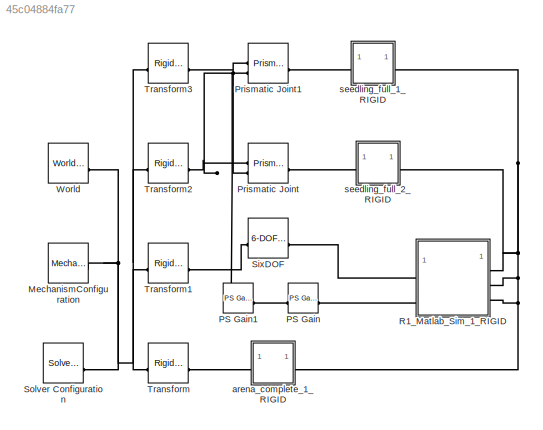
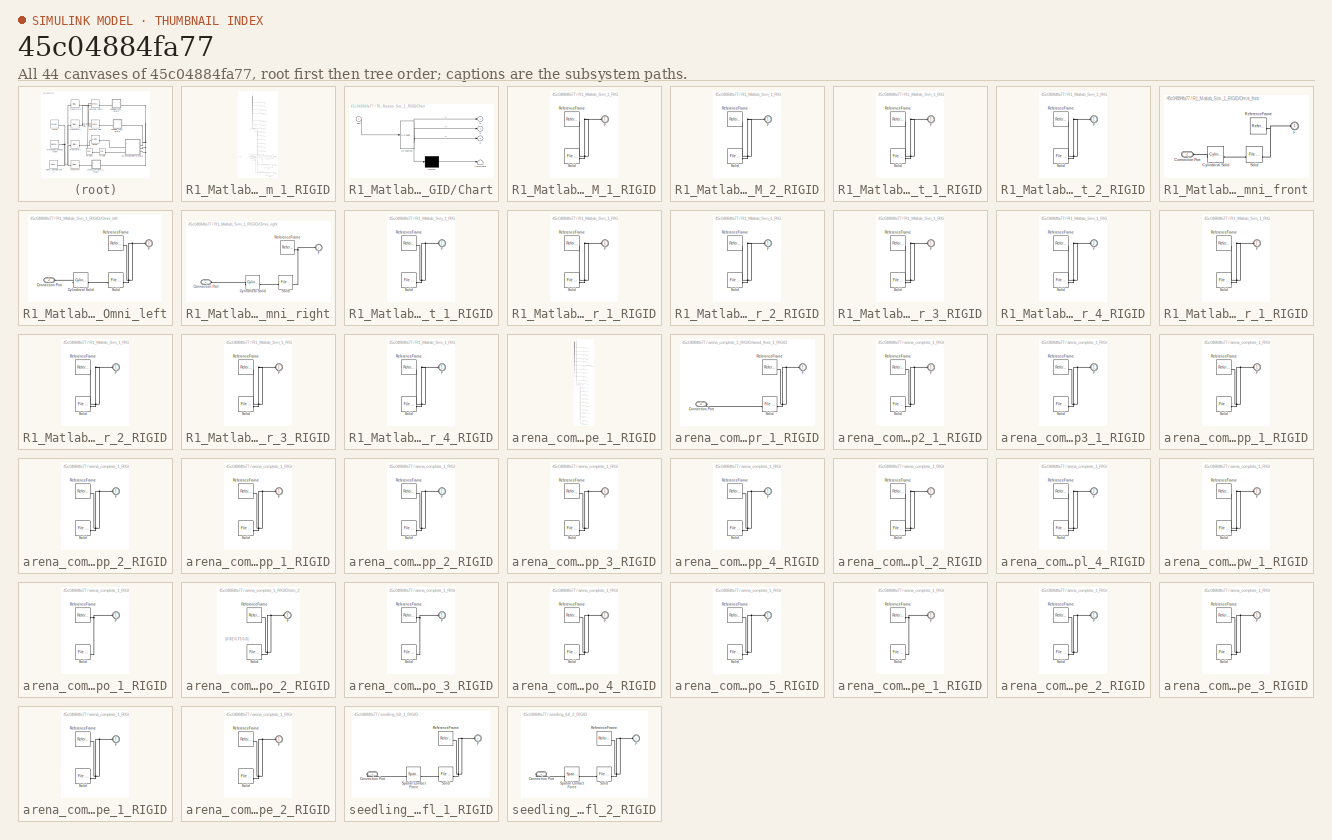
[diagram: thumbnail index - all 44 canvases of the model, root first then tree order]
MODEL slx_45c04884fa77
KIND model
CONFIG AbsTol = auto
CONFIG EnableMultiTasking = off
CONFIG FixedStep = auto
CONFIG MaxStep = auto
CONFIG MinStep = auto
CONFIG RelTol = 1e-3
CONFIG SampleTimeConstraint = Unconstrained
CONFIG SolverName = VariableStepAuto
CONFIG StartTime = 0.0
CONFIG StopTime = 20
WORKSPACE source: external: MATLAB File  (data not in archive)
BLOCK [Reference] MechanismConfiguration  REF=sm_lib/Utilities/Mechanism
Configuration
  SourceBlock = sm_lib/Utilities/Mechanism\nConfiguration
  SourceType = Mechanism\nConfiguration
BLOCK [Reference] PS Gain  REF=fl_lib/Physical Signals/Functions/PS Gain
  SourceBlock = fl_lib/Physical Signals/Functions/PS Gain
  SourceType = PS Gain
BLOCK [Reference] PS Gain1  REF=fl_lib/Physical Signals/Functions/PS Gain
  SourceBlock = fl_lib/Physical Signals/Functions/PS Gain
  SourceType = PS Gain
BLOCK [Reference] Prismatic Joint  REF=sm_lib/Joints/Prismatic
Joint
  SourceBlock = sm_lib/Joints/Prismatic\nJoint
  SourceType = Prismatic\nJoint
BLOCK [Reference] Prismatic Joint1  REF=sm_lib/Joints/Prismatic
Joint
  SourceBlock = sm_lib/Joints/Prismatic\nJoint
  SourceType = Prismatic\nJoint
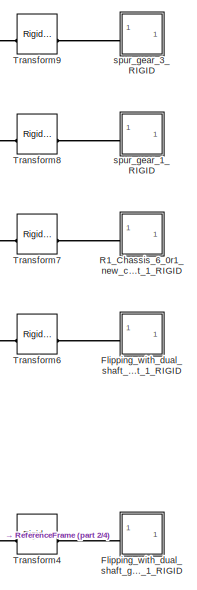
[diagram: R1_Matlab_Sim_1_RIGID - part 1/4, top center region]
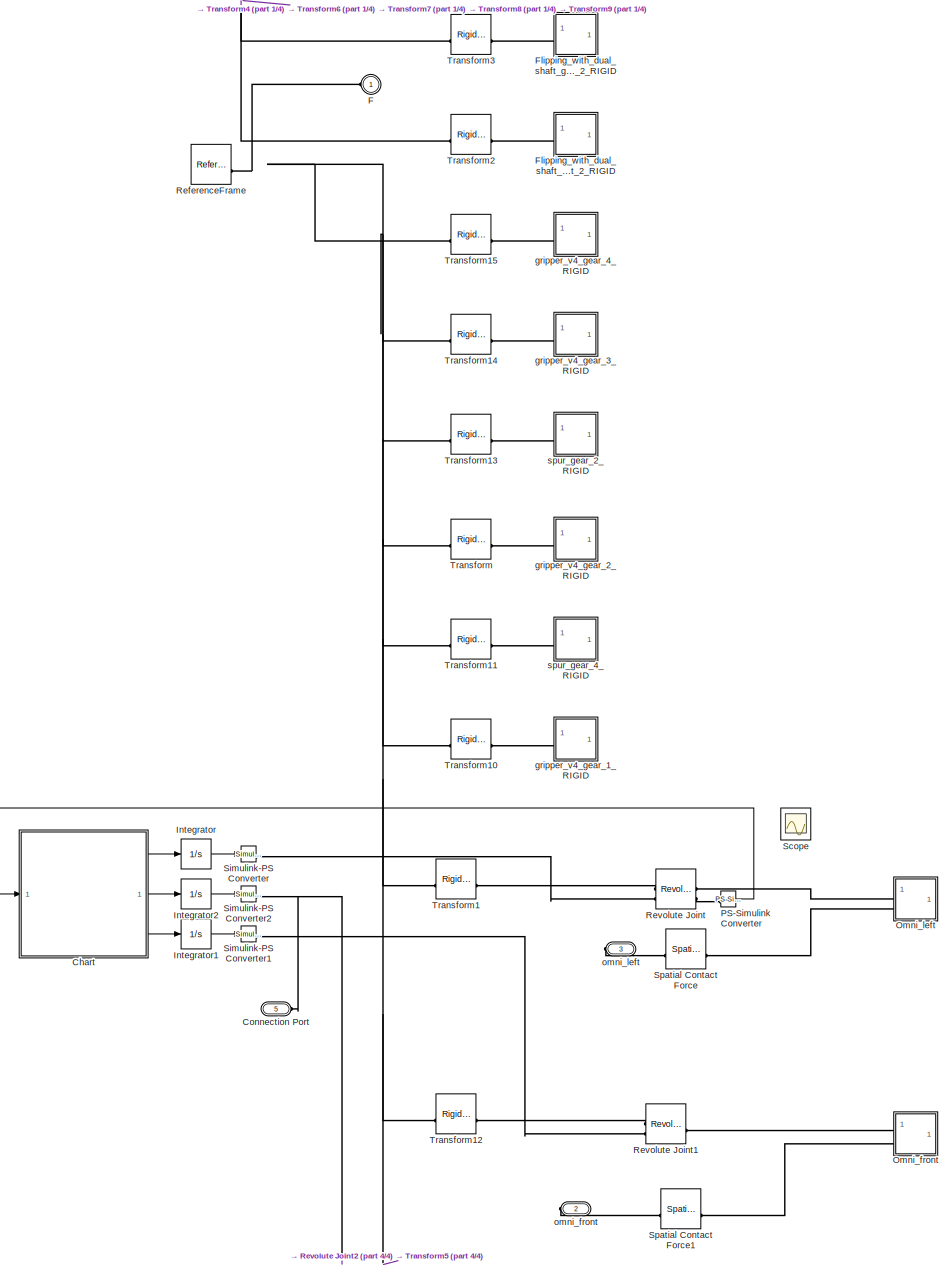
[diagram: R1_Matlab_Sim_1_RIGID - part 2/4, full width, middle band]
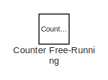
[diagram: R1_Matlab_Sim_1_RIGID - part 3/4, bottom left region]
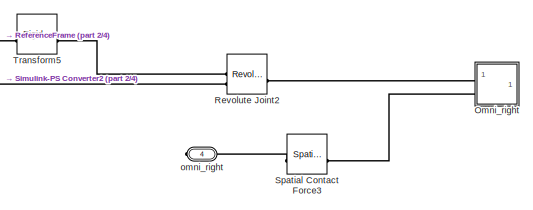
[diagram: R1_Matlab_Sim_1_RIGID - part 4/4, bottom right region]
BLOCK [SubSystem] R1_Matlab_Sim_1_RIGID
BLOCK [SubSystem] R1_Matlab_Sim_1_RIGID/Chart
  ErrorFcn = Stateflow.Translate.translate
  PermitHierarchicalResolution = ExplicitOnly
  PortSchema = {"entries":[{"content":{"sides":[{"content":{"connectorIds":["In1"]},"type":"ConnectorPlacement.EquallySpacedRectSide","uuid":"4c3b09f7-9276-4f85-a010-21e19151de8d"},{"content":{"connectorIds":["Out1","Out3","Out2"],"side":"RIGHT"},"type":"ConnectorPlacement.EquallySpacedRectSide","uuid":"f969736c-0c63-41bd-b34f-33692f9d3e00"},{"content":{"side":"TOP"},"type":"ConnectorPlacement.EquallySpacedRectS...<+236ch>
  SFBlockType = Chart
  TreatAsAtomicUnit = on
BLOCK [Demux] R1_Matlab_Sim_1_RIGID/Chart/ Demux 
  Outputs = 1
BLOCK [S-Function] R1_Matlab_Sim_1_RIGID/Chart/ SFunction 
  EnableBusSupport = on
  FunctionName = sf_sfun
  PortCounts = [1 4]
  SFcnIsStateOwnerBlock = off
  SFunctionDeploymentMode = off
  Tag = Stateflow S-Function 3
BLOCK [Terminator] R1_Matlab_Sim_1_RIGID/Chart/ Terminator 
BLOCK [Inport] R1_Matlab_Sim_1_RIGID/Chart/posl
BLOCK [Outport] R1_Matlab_Sim_1_RIGID/Chart/vf
  Port = 2
BLOCK [Outport] R1_Matlab_Sim_1_RIGID/Chart/vl
BLOCK [Outport] R1_Matlab_Sim_1_RIGID/Chart/vr
  Port = 3
BLOCK [PMIOPort] R1_Matlab_Sim_1_RIGID/Connection Port
  Port = 5
  Side = Left
BLOCK [Reference] R1_Matlab_Sim_1_RIGID/Counter Free-Running  REF=simulink/Sources/Counter
Free-Running
  SourceBlock = simulink/Sources/Counter\nFree-Running
  SourceType = Counter Free-Running
BLOCK [PMIOPort] R1_Matlab_Sim_1_RIGID/F
  Side = Left
BLOCK [SubSystem] R1_Matlab_Sim_1_RIGID/Flipping_with_dual_shaft_gripper_part_SLDASM_1_RIGID
BLOCK [PMIOPort] R1_Matlab_Sim_1_RIGID/Flipping_with_dual_shaft_gripper_part_SLDASM_1_RIGID/F
  Side = Left
BLOCK [Reference] R1_Matlab_Sim_1_RIGID/Flipping_with_dual_shaft_gripper_part_SLDASM_1_RIGID/ReferenceFrame  REF=sm_lib/Frames and
Transforms/Reference
Frame
  SourceBlock = sm_lib/Frames and\nTransforms/Reference\nFrame
  SourceType = Reference\nFrame
BLOCK [Reference] R1_Matlab_Sim_1_RIGID/Flipping_with_dual_shaft_gripper_part_SLDASM_1_RIGID/Solid  REF=sm_lib/Body Elements/File Solid
  SourceBlock = sm_lib/Body Elements/File Solid
  SourceType = File Solid
BLOCK [SubSystem] R1_Matlab_Sim_1_RIGID/Flipping_with_dual_shaft_gripper_part_SLDASM_2_RIGID
BLOCK [PMIOPort] R1_Matlab_Sim_1_RIGID/Flipping_with_dual_shaft_gripper_part_SLDASM_2_RIGID/F
  Side = Left
BLOCK [Reference] R1_Matlab_Sim_1_RIGID/Flipping_with_dual_shaft_gripper_part_SLDASM_2_RIGID/ReferenceFrame  REF=sm_lib/Frames and
Transforms/Reference
Frame
  SourceBlock = sm_lib/Frames and\nTransforms/Reference\nFrame
  SourceType = Reference\nFrame
BLOCK [Reference] R1_Matlab_Sim_1_RIGID/Flipping_with_dual_shaft_gripper_part_SLDASM_2_RIGID/Solid  REF=sm_lib/Body Elements/File Solid
  SourceBlock = sm_lib/Body Elements/File Solid
  SourceType = File Solid
BLOCK [SubSystem] R1_Matlab_Sim_1_RIGID/Flipping_with_dual_shaft_part_1_RIGID
BLOCK [PMIOPort] R1_Matlab_Sim_1_RIGID/Flipping_with_dual_shaft_part_1_RIGID/F
  Side = Left
BLOCK [Reference] R1_Matlab_Sim_1_RIGID/Flipping_with_dual_shaft_part_1_RIGID/ReferenceFrame  REF=sm_lib/Frames and
Transforms/Reference
Frame
  SourceBlock = sm_lib/Frames and\nTransforms/Reference\nFrame
  SourceType = Reference\nFrame
BLOCK [Reference] R1_Matlab_Sim_1_RIGID/Flipping_with_dual_shaft_part_1_RIGID/Solid  REF=sm_lib/Body Elements/File Solid
  SourceBlock = sm_lib/Body Elements/File Solid
  SourceType = File Solid
BLOCK [SubSystem] R1_Matlab_Sim_1_RIGID/Flipping_with_dual_shaft_part_2_RIGID
BLOCK [PMIOPort] R1_Matlab_Sim_1_RIGID/Flipping_with_dual_shaft_part_2_RIGID/F
  Side = Left
BLOCK [Reference] R1_Matlab_Sim_1_RIGID/Flipping_with_dual_shaft_part_2_RIGID/ReferenceFrame  REF=sm_lib/Frames and
Transforms/Reference
Frame
  SourceBlock = sm_lib/Frames and\nTransforms/Reference\nFrame
  SourceType = Reference\nFrame
BLOCK [Reference] R1_Matlab_Sim_1_RIGID/Flipping_with_dual_shaft_part_2_RIGID/Solid  REF=sm_lib/Body Elements/File Solid
  SourceBlock = sm_lib/Body Elements/File Solid
  SourceType = File Solid
BLOCK [Integrator] R1_Matlab_Sim_1_RIGID/Integrator
BLOCK [Integrator] R1_Matlab_Sim_1_RIGID/Integrator1
BLOCK [Integrator] R1_Matlab_Sim_1_RIGID/Integrator2
BLOCK [SubSystem] R1_Matlab_Sim_1_RIGID/Omni_front
BLOCK [PMIOPort] R1_Matlab_Sim_1_RIGID/Omni_front/Connection Port
  Port = 2
  Side = Left
BLOCK [Reference] R1_Matlab_Sim_1_RIGID/Omni_front/Cylindrical Solid  REF=sm_lib/Body Elements/Cylindrical Solid
  SourceBlock = sm_lib/Body Elements/Cylindrical Solid
  SourceType = Cylindrical Solid
BLOCK [PMIOPort] R1_Matlab_Sim_1_RIGID/Omni_front/F
  Side = Left
BLOCK [Reference] R1_Matlab_Sim_1_RIGID/Omni_front/ReferenceFrame  REF=sm_lib/Frames and
Transforms/Reference
Frame
  SourceBlock = sm_lib/Frames and\nTransforms/Reference\nFrame
  SourceType = Reference\nFrame
BLOCK [Reference] R1_Matlab_Sim_1_RIGID/Omni_front/Solid  REF=sm_lib/Body Elements/File Solid
  SourceBlock = sm_lib/Body Elements/File Solid
  SourceType = File Solid
BLOCK [SubSystem] R1_Matlab_Sim_1_RIGID/Omni_left
BLOCK [PMIOPort] R1_Matlab_Sim_1_RIGID/Omni_left/Connection Port
  Port = 2
  Side = Left
BLOCK [Reference] R1_Matlab_Sim_1_RIGID/Omni_left/Cylindrical Solid  REF=sm_lib/Body Elements/Cylindrical Solid
  SourceBlock = sm_lib/Body Elements/Cylindrical Solid
  SourceType = Cylindrical Solid
BLOCK [PMIOPort] R1_Matlab_Sim_1_RIGID/Omni_left/F
  Side = Left
BLOCK [Reference] R1_Matlab_Sim_1_RIGID/Omni_left/ReferenceFrame  REF=sm_lib/Frames and
Transforms/Reference
Frame
  SourceBlock = sm_lib/Frames and\nTransforms/Reference\nFrame
  SourceType = Reference\nFrame
BLOCK [Reference] R1_Matlab_Sim_1_RIGID/Omni_left/Solid  REF=sm_lib/Body Elements/File Solid
  SourceBlock = sm_lib/Body Elements/File Solid
  SourceType = File Solid
BLOCK [SubSystem] R1_Matlab_Sim_1_RIGID/Omni_right
BLOCK [PMIOPort] R1_Matlab_Sim_1_RIGID/Omni_right/Connection Port
  Port = 2
  Side = Left
BLOCK [Reference] R1_Matlab_Sim_1_RIGID/Omni_right/Cylindrical Solid  REF=sm_lib/Body Elements/Cylindrical Solid
  SourceBlock = sm_lib/Body Elements/Cylindrical Solid
  SourceType = Cylindrical Solid
BLOCK [PMIOPort] R1_Matlab_Sim_1_RIGID/Omni_right/F
  Side = Left
BLOCK [Reference] R1_Matlab_Sim_1_RIGID/Omni_right/ReferenceFrame  REF=sm_lib/Frames and
Transforms/Reference
Frame
  SourceBlock = sm_lib/Frames and\nTransforms/Reference\nFrame
  SourceType = Reference\nFrame
BLOCK [Reference] R1_Matlab_Sim_1_RIGID/Omni_right/Solid  REF=sm_lib/Body Elements/File Solid
  SourceBlock = sm_lib/Body Elements/File Solid
  SourceType = File Solid
BLOCK [Reference] R1_Matlab_Sim_1_RIGID/PS-Simulink Converter  REF=nesl_utility/PS-Simulink
Converter
  SourceBlock = nesl_utility/PS-Simulink\nConverter
  SourceType = PS-Simulink\nConverter
BLOCK [SubSystem] R1_Matlab_Sim_1_RIGID/R1_Chassis_6_0r1_new_chassis_final_part_1_RIGID
BLOCK [PMIOPort] R1_Matlab_Sim_1_RIGID/R1_Chassis_6_0r1_new_chassis_final_part_1_RIGID/F
  Side = Left
BLOCK [Reference] R1_Matlab_Sim_1_RIGID/R1_Chassis_6_0r1_new_chassis_final_part_1_RIGID/ReferenceFrame  REF=sm_lib/Frames and
Transforms/Reference
Frame
  SourceBlock = sm_lib/Frames and\nTransforms/Reference\nFrame
  SourceType = Reference\nFrame
BLOCK [Reference] R1_Matlab_Sim_1_RIGID/R1_Chassis_6_0r1_new_chassis_final_part_1_RIGID/Solid  REF=sm_lib/Body Elements/File Solid
  SourceBlock = sm_lib/Body Elements/File Solid
  SourceType = File Solid
BLOCK [Reference] R1_Matlab_Sim_1_RIGID/ReferenceFrame  REF=sm_lib/Frames and
Transforms/Reference
Frame
  SourceBlock = sm_lib/Frames and\nTransforms/Reference\nFrame
  SourceType = Reference\nFrame
BLOCK [Reference] R1_Matlab_Sim_1_RIGID/Revolute Joint  REF=sm_lib/Joints/Revolute Joint
  SourceBlock = sm_lib/Joints/Revolute Joint
  SourceType = Revolute Joint
BLOCK [Reference] R1_Matlab_Sim_1_RIGID/Revolute Joint1  REF=sm_lib/Joints/Revolute Joint
  SourceBlock = sm_lib/Joints/Revolute Joint
  SourceType = Revolute Joint
BLOCK [Reference] R1_Matlab_Sim_1_RIGID/Revolute Joint2  REF=sm_lib/Joints/Revolute Joint
  SourceBlock = sm_lib/Joints/Revolute Joint
  SourceType = Revolute Joint
BLOCK [Scope] R1_Matlab_Sim_1_RIGID/Scope
  Floating = off
  NumInputPorts = 1
  ScopeSpecificationString = Simulink.scopes.TimeScopeBlockCfg('CurrentConfiguration', extmgr.ConfigurationSet(extmgr.Configuration('Core','General UI',true),extmgr.Configuration('Core','Source UI',true),extmgr.Configuration('Sources','WiredSimulink',true),extmgr.Configuration('Visuals','Time Domain',true,'SerializedDisplays',{struct('MinYLimReal','-55.14485','MaxYLimReal','6.12721','YLabelReal','','MinYLimMag','0.00000','Max...<+1434ch>
BLOCK [Reference] R1_Matlab_Sim_1_RIGID/Simulink-PS Converter  REF=nesl_utility/Simulink-PS
Converter
  SourceBlock = nesl_utility/Simulink-PS\nConverter
  SourceType = Simulink-PS\nConverter
BLOCK [Reference] R1_Matlab_Sim_1_RIGID/Simulink-PS Converter1  REF=nesl_utility/Simulink-PS
Converter
  SourceBlock = nesl_utility/Simulink-PS\nConverter
  SourceType = Simulink-PS\nConverter
BLOCK [Reference] R1_Matlab_Sim_1_RIGID/Simulink-PS Converter2  REF=nesl_utility/Simulink-PS
Converter
  SourceBlock = nesl_utility/Simulink-PS\nConverter
  SourceType = Simulink-PS\nConverter
BLOCK [Reference] R1_Matlab_Sim_1_RIGID/Spatial Contact Force  REF=sm_lib/Forces and
Torques/Spatial
Contact Force
  SourceBlock = sm_lib/Forces and\nTorques/Spatial\nContact Force
  SourceType = Spatial\nContact Force
BLOCK [Reference] R1_Matlab_Sim_1_RIGID/Spatial Contact Force1  REF=sm_lib/Forces and
Torques/Spatial
Contact Force
  SourceBlock = sm_lib/Forces and\nTorques/Spatial\nContact Force
  SourceType = Spatial\nContact Force
BLOCK [Reference] R1_Matlab_Sim_1_RIGID/Spatial Contact Force3  REF=sm_lib/Forces and
Torques/Spatial
Contact Force
  SourceBlock = sm_lib/Forces and\nTorques/Spatial\nContact Force
  SourceType = Spatial\nContact Force
BLOCK [Reference] R1_Matlab_Sim_1_RIGID/Transform  REF=sm_lib/Frames and
Transforms/Rigid
Transform
  SourceBlock = sm_lib/Frames and\nTransforms/Rigid\nTransform
  SourceType = Rigid\nTransform
BLOCK [Reference] R1_Matlab_Sim_1_RIGID/Transform1  REF=sm_lib/Frames and
Transforms/Rigid
Transform
  SourceBlock = sm_lib/Frames and\nTransforms/Rigid\nTransform
  SourceType = Rigid\nTransform
BLOCK [Reference] R1_Matlab_Sim_1_RIGID/Transform10  REF=sm_lib/Frames and
Transforms/Rigid
Transform
  SourceBlock = sm_lib/Frames and\nTransforms/Rigid\nTransform
  SourceType = Rigid\nTransform
BLOCK [Reference] R1_Matlab_Sim_1_RIGID/Transform11  REF=sm_lib/Frames and
Transforms/Rigid
Transform
  SourceBlock = sm_lib/Frames and\nTransforms/Rigid\nTransform
  SourceType = Rigid\nTransform
BLOCK [Reference] R1_Matlab_Sim_1_RIGID/Transform12  REF=sm_lib/Frames and
Transforms/Rigid
Transform
  SourceBlock = sm_lib/Frames and\nTransforms/Rigid\nTransform
  SourceType = Rigid\nTransform
BLOCK [Reference] R1_Matlab_Sim_1_RIGID/Transform13  REF=sm_lib/Frames and
Transforms/Rigid
Transform
  SourceBlock = sm_lib/Frames and\nTransforms/Rigid\nTransform
  SourceType = Rigid\nTransform
BLOCK [Reference] R1_Matlab_Sim_1_RIGID/Transform14  REF=sm_lib/Frames and
Transforms/Rigid
Transform
  SourceBlock = sm_lib/Frames and\nTransforms/Rigid\nTransform
  SourceType = Rigid\nTransform
BLOCK [Reference] R1_Matlab_Sim_1_RIGID/Transform15  REF=sm_lib/Frames and
Transforms/Rigid
Transform
  SourceBlock = sm_lib/Frames and\nTransforms/Rigid\nTransform
  SourceType = Rigid\nTransform
BLOCK [Reference] R1_Matlab_Sim_1_RIGID/Transform2  REF=sm_lib/Frames and
Transforms/Rigid
Transform
  SourceBlock = sm_lib/Frames and\nTransforms/Rigid\nTransform
  SourceType = Rigid\nTransform
BLOCK [Reference] R1_Matlab_Sim_1_RIGID/Transform3  REF=sm_lib/Frames and
Transforms/Rigid
Transform
  SourceBlock = sm_lib/Frames and\nTransforms/Rigid\nTransform
  SourceType = Rigid\nTransform
BLOCK [Reference] R1_Matlab_Sim_1_RIGID/Transform4  REF=sm_lib/Frames and
Transforms/Rigid
Transform
  SourceBlock = sm_lib/Frames and\nTransforms/Rigid\nTransform
  SourceType = Rigid\nTransform
BLOCK [Reference] R1_Matlab_Sim_1_RIGID/Transform5  REF=sm_lib/Frames and
Transforms/Rigid
Transform
  SourceBlock = sm_lib/Frames and\nTransforms/Rigid\nTransform
  SourceType = Rigid\nTransform
BLOCK [Reference] R1_Matlab_Sim_1_RIGID/Transform6  REF=sm_lib/Frames and
Transforms/Rigid
Transform
  SourceBlock = sm_lib/Frames and\nTransforms/Rigid\nTransform
  SourceType = Rigid\nTransform
BLOCK [Reference] R1_Matlab_Sim_1_RIGID/Transform7  REF=sm_lib/Frames and
Transforms/Rigid
Transform
  SourceBlock = sm_lib/Frames and\nTransforms/Rigid\nTransform
  SourceType = Rigid\nTransform
BLOCK [Reference] R1_Matlab_Sim_1_RIGID/Transform8  REF=sm_lib/Frames and
Transforms/Rigid
Transform
  SourceBlock = sm_lib/Frames and\nTransforms/Rigid\nTransform
  SourceType = Rigid\nTransform
BLOCK [Reference] R1_Matlab_Sim_1_RIGID/Transform9  REF=sm_lib/Frames and
Transforms/Rigid
Transform
  SourceBlock = sm_lib/Frames and\nTransforms/Rigid\nTransform
  SourceType = Rigid\nTransform
BLOCK [SubSystem] R1_Matlab_Sim_1_RIGID/gripper_v4_gear_1_RIGID
BLOCK [PMIOPort] R1_Matlab_Sim_1_RIGID/gripper_v4_gear_1_RIGID/F
  Side = Left
BLOCK [Reference] R1_Matlab_Sim_1_RIGID/gripper_v4_gear_1_RIGID/ReferenceFrame  REF=sm_lib/Frames and
Transforms/Reference
Frame
  SourceBlock = sm_lib/Frames and\nTransforms/Reference\nFrame
  SourceType = Reference\nFrame
BLOCK [Reference] R1_Matlab_Sim_1_RIGID/gripper_v4_gear_1_RIGID/Solid  REF=sm_lib/Body Elements/File Solid
  SourceBlock = sm_lib/Body Elements/File Solid
  SourceType = File Solid
BLOCK [SubSystem] R1_Matlab_Sim_1_RIGID/gripper_v4_gear_2_RIGID
BLOCK [PMIOPort] R1_Matlab_Sim_1_RIGID/gripper_v4_gear_2_RIGID/F
  Side = Left
BLOCK [Reference] R1_Matlab_Sim_1_RIGID/gripper_v4_gear_2_RIGID/ReferenceFrame  REF=sm_lib/Frames and
Transforms/Reference
Frame
  SourceBlock = sm_lib/Frames and\nTransforms/Reference\nFrame
  SourceType = Reference\nFrame
BLOCK [Reference] R1_Matlab_Sim_1_RIGID/gripper_v4_gear_2_RIGID/Solid  REF=sm_lib/Body Elements/File Solid
  SourceBlock = sm_lib/Body Elements/File Solid
  SourceType = File Solid
BLOCK [SubSystem] R1_Matlab_Sim_1_RIGID/gripper_v4_gear_3_RIGID
BLOCK [PMIOPort] R1_Matlab_Sim_1_RIGID/gripper_v4_gear_3_RIGID/F
  Side = Left
BLOCK [Reference] R1_Matlab_Sim_1_RIGID/gripper_v4_gear_3_RIGID/ReferenceFrame  REF=sm_lib/Frames and
Transforms/Reference
Frame
  SourceBlock = sm_lib/Frames and\nTransforms/Reference\nFrame
  SourceType = Reference\nFrame
BLOCK [Reference] R1_Matlab_Sim_1_RIGID/gripper_v4_gear_3_RIGID/Solid  REF=sm_lib/Body Elements/File Solid
  SourceBlock = sm_lib/Body Elements/File Solid
  SourceType = File Solid
BLOCK [SubSystem] R1_Matlab_Sim_1_RIGID/gripper_v4_gear_4_RIGID
BLOCK [PMIOPort] R1_Matlab_Sim_1_RIGID/gripper_v4_gear_4_RIGID/F
  Side = Left
BLOCK [Reference] R1_Matlab_Sim_1_RIGID/gripper_v4_gear_4_RIGID/ReferenceFrame  REF=sm_lib/Frames and
Transforms/Reference
Frame
  SourceBlock = sm_lib/Frames and\nTransforms/Reference\nFrame
  SourceType = Reference\nFrame
BLOCK [Reference] R1_Matlab_Sim_1_RIGID/gripper_v4_gear_4_RIGID/Solid  REF=sm_lib/Body Elements/File Solid
  SourceBlock = sm_lib/Body Elements/File Solid
  SourceType = File Solid
BLOCK [PMIOPort] R1_Matlab_Sim_1_RIGID/omni_front
  Port = 2
  Side = Right
BLOCK [PMIOPort] R1_Matlab_Sim_1_RIGID/omni_left
  Port = 3
  Side = Right
BLOCK [PMIOPort] R1_Matlab_Sim_1_RIGID/omni_right
  Port = 4
  Side = Right
BLOCK [SubSystem] R1_Matlab_Sim_1_RIGID/spur_gear_1_RIGID
BLOCK [PMIOPort] R1_Matlab_Sim_1_RIGID/spur_gear_1_RIGID/F
  Side = Left
BLOCK [Reference] R1_Matlab_Sim_1_RIGID/spur_gear_1_RIGID/ReferenceFrame  REF=sm_lib/Frames and
Transforms/Reference
Frame
  SourceBlock = sm_lib/Frames and\nTransforms/Reference\nFrame
  SourceType = Reference\nFrame
BLOCK [Reference] R1_Matlab_Sim_1_RIGID/spur_gear_1_RIGID/Solid  REF=sm_lib/Body Elements/File Solid
  SourceBlock = sm_lib/Body Elements/File Solid
  SourceType = File Solid
BLOCK [SubSystem] R1_Matlab_Sim_1_RIGID/spur_gear_2_RIGID
BLOCK [PMIOPort] R1_Matlab_Sim_1_RIGID/spur_gear_2_RIGID/F
  Side = Left
BLOCK [Reference] R1_Matlab_Sim_1_RIGID/spur_gear_2_RIGID/ReferenceFrame  REF=sm_lib/Frames and
Transforms/Reference
Frame
  SourceBlock = sm_lib/Frames and\nTransforms/Reference\nFrame
  SourceType = Reference\nFrame
BLOCK [Reference] R1_Matlab_Sim_1_RIGID/spur_gear_2_RIGID/Solid  REF=sm_lib/Body Elements/File Solid
  SourceBlock = sm_lib/Body Elements/File Solid
  SourceType = File Solid
BLOCK [SubSystem] R1_Matlab_Sim_1_RIGID/spur_gear_3_RIGID
BLOCK [PMIOPort] R1_Matlab_Sim_1_RIGID/spur_gear_3_RIGID/F
  Side = Left
BLOCK [Reference] R1_Matlab_Sim_1_RIGID/spur_gear_3_RIGID/ReferenceFrame  REF=sm_lib/Frames and
Transforms/Reference
Frame
  SourceBlock = sm_lib/Frames and\nTransforms/Reference\nFrame
  SourceType = Reference\nFrame
BLOCK [Reference] R1_Matlab_Sim_1_RIGID/spur_gear_3_RIGID/Solid  REF=sm_lib/Body Elements/File Solid
  SourceBlock = sm_lib/Body Elements/File Solid
  SourceType = File Solid
BLOCK [SubSystem] R1_Matlab_Sim_1_RIGID/spur_gear_4_RIGID
BLOCK [PMIOPort] R1_Matlab_Sim_1_RIGID/spur_gear_4_RIGID/F
  Side = Left
BLOCK [Reference] R1_Matlab_Sim_1_RIGID/spur_gear_4_RIGID/ReferenceFrame  REF=sm_lib/Frames and
Transforms/Reference
Frame
  SourceBlock = sm_lib/Frames and\nTransforms/Reference\nFrame
  SourceType = Reference\nFrame
BLOCK [Reference] R1_Matlab_Sim_1_RIGID/spur_gear_4_RIGID/Solid  REF=sm_lib/Body Elements/File Solid
  SourceBlock = sm_lib/Body Elements/File Solid
  SourceType = File Solid
BLOCK [Reference] SixDOF  REF=sm_lib/Joints/6-DOF Joint
  SourceBlock = sm_lib/Joints/6-DOF Joint
  SourceType = 6-DOF Joint
BLOCK [Reference] Solver Configuration  REF=nesl_utility/Solver
Configuration
  SourceBlock = nesl_utility/Solver\nConfiguration
  SourceType = Solver\nConfiguration
BLOCK [Reference] Transform  REF=sm_lib/Frames and
Transforms/Rigid
Transform
  SourceBlock = sm_lib/Frames and\nTransforms/Rigid\nTransform
  SourceType = Rigid\nTransform
BLOCK [Reference] Transform1  REF=sm_lib/Frames and
Transforms/Rigid
Transform
  SourceBlock = sm_lib/Frames and\nTransforms/Rigid\nTransform
  SourceType = Rigid\nTransform
BLOCK [Reference] Transform2  REF=sm_lib/Frames and
Transforms/Rigid
Transform
  SourceBlock = sm_lib/Frames and\nTransforms/Rigid\nTransform
  SourceType = Rigid\nTransform
BLOCK [Reference] Transform3  REF=sm_lib/Frames and
Transforms/Rigid
Transform
  SourceBlock = sm_lib/Frames and\nTransforms/Rigid\nTransform
  SourceType = Rigid\nTransform
BLOCK [Reference] World  REF=sm_lib/Frames and
Transforms/World Frame
  SourceBlock = sm_lib/Frames and\nTransforms/World Frame
  SourceType = World Frame
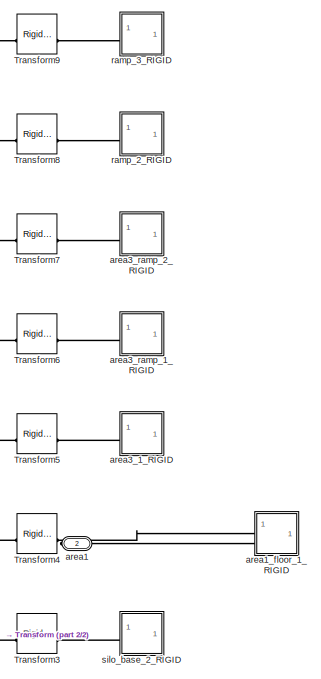
[diagram: arena_complete_1_RIGID - part 1/2, top right region]
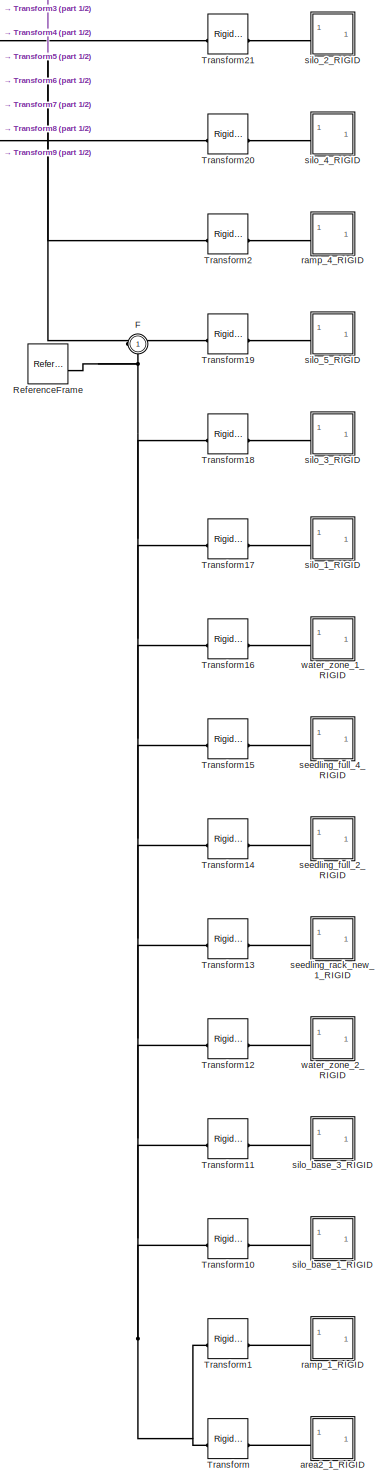
[diagram: arena_complete_1_RIGID - part 2/2, bottom center region]
BLOCK [SubSystem] arena_complete_1_RIGID
BLOCK [PMIOPort] arena_complete_1_RIGID/F
  Side = Left
BLOCK [Reference] arena_complete_1_RIGID/ReferenceFrame  REF=sm_lib/Frames and
Transforms/Reference
Frame
  SourceBlock = sm_lib/Frames and\nTransforms/Reference\nFrame
  SourceType = Reference\nFrame
BLOCK [Reference] arena_complete_1_RIGID/Transform  REF=sm_lib/Frames and
Transforms/Rigid
Transform
  SourceBlock = sm_lib/Frames and\nTransforms/Rigid\nTransform
  SourceType = Rigid\nTransform
BLOCK [Reference] arena_complete_1_RIGID/Transform1  REF=sm_lib/Frames and
Transforms/Rigid
Transform
  SourceBlock = sm_lib/Frames and\nTransforms/Rigid\nTransform
  SourceType = Rigid\nTransform
BLOCK [Reference] arena_complete_1_RIGID/Transform10  REF=sm_lib/Frames and
Transforms/Rigid
Transform
  SourceBlock = sm_lib/Frames and\nTransforms/Rigid\nTransform
  SourceType = Rigid\nTransform
BLOCK [Reference] arena_complete_1_RIGID/Transform11  REF=sm_lib/Frames and
Transforms/Rigid
Transform
  SourceBlock = sm_lib/Frames and\nTransforms/Rigid\nTransform
  SourceType = Rigid\nTransform
BLOCK [Reference] arena_complete_1_RIGID/Transform12  REF=sm_lib/Frames and
Transforms/Rigid
Transform
  SourceBlock = sm_lib/Frames and\nTransforms/Rigid\nTransform
  SourceType = Rigid\nTransform
BLOCK [Reference] arena_complete_1_RIGID/Transform13  REF=sm_lib/Frames and
Transforms/Rigid
Transform
  SourceBlock = sm_lib/Frames and\nTransforms/Rigid\nTransform
  SourceType = Rigid\nTransform
BLOCK [Reference] arena_complete_1_RIGID/Transform14  REF=sm_lib/Frames and
Transforms/Rigid
Transform
  SourceBlock = sm_lib/Frames and\nTransforms/Rigid\nTransform
  SourceType = Rigid\nTransform
BLOCK [Reference] arena_complete_1_RIGID/Transform15  REF=sm_lib/Frames and
Transforms/Rigid
Transform
  SourceBlock = sm_lib/Frames and\nTransforms/Rigid\nTransform
  SourceType = Rigid\nTransform
BLOCK [Reference] arena_complete_1_RIGID/Transform16  REF=sm_lib/Frames and
Transforms/Rigid
Transform
  SourceBlock = sm_lib/Frames and\nTransforms/Rigid\nTransform
  SourceType = Rigid\nTransform
BLOCK [Reference] arena_complete_1_RIGID/Transform17  REF=sm_lib/Frames and
Transforms/Rigid
Transform
  SourceBlock = sm_lib/Frames and\nTransforms/Rigid\nTransform
  SourceType = Rigid\nTransform
BLOCK [Reference] arena_complete_1_RIGID/Transform18  REF=sm_lib/Frames and
Transforms/Rigid
Transform
  SourceBlock = sm_lib/Frames and\nTransforms/Rigid\nTransform
  SourceType = Rigid\nTransform
BLOCK [Reference] arena_complete_1_RIGID/Transform19  REF=sm_lib/Frames and
Transforms/Rigid
Transform
  SourceBlock = sm_lib/Frames and\nTransforms/Rigid\nTransform
  SourceType = Rigid\nTransform
BLOCK [Reference] arena_complete_1_RIGID/Transform2  REF=sm_lib/Frames and
Transforms/Rigid
Transform
  SourceBlock = sm_lib/Frames and\nTransforms/Rigid\nTransform
  SourceType = Rigid\nTransform
BLOCK [Reference] arena_complete_1_RIGID/Transform20  REF=sm_lib/Frames and
Transforms/Rigid
Transform
  SourceBlock = sm_lib/Frames and\nTransforms/Rigid\nTransform
  SourceType = Rigid\nTransform
BLOCK [Reference] arena_complete_1_RIGID/Transform21  REF=sm_lib/Frames and
Transforms/Rigid
Transform
  SourceBlock = sm_lib/Frames and\nTransforms/Rigid\nTransform
  SourceType = Rigid\nTransform
BLOCK [Reference] arena_complete_1_RIGID/Transform3  REF=sm_lib/Frames and
Transforms/Rigid
Transform
  SourceBlock = sm_lib/Frames and\nTransforms/Rigid\nTransform
  SourceType = Rigid\nTransform
BLOCK [Reference] arena_complete_1_RIGID/Transform4  REF=sm_lib/Frames and
Transforms/Rigid
Transform
  SourceBlock = sm_lib/Frames and\nTransforms/Rigid\nTransform
  SourceType = Rigid\nTransform
BLOCK [Reference] arena_complete_1_RIGID/Transform5  REF=sm_lib/Frames and
Transforms/Rigid
Transform
  SourceBlock = sm_lib/Frames and\nTransforms/Rigid\nTransform
  SourceType = Rigid\nTransform
BLOCK [Reference] arena_complete_1_RIGID/Transform6  REF=sm_lib/Frames and
Transforms/Rigid
Transform
  SourceBlock = sm_lib/Frames and\nTransforms/Rigid\nTransform
  SourceType = Rigid\nTransform
BLOCK [Reference] arena_complete_1_RIGID/Transform7  REF=sm_lib/Frames and
Transforms/Rigid
Transform
  SourceBlock = sm_lib/Frames and\nTransforms/Rigid\nTransform
  SourceType = Rigid\nTransform
BLOCK [Reference] arena_complete_1_RIGID/Transform8  REF=sm_lib/Frames and
Transforms/Rigid
Transform
  SourceBlock = sm_lib/Frames and\nTransforms/Rigid\nTransform
  SourceType = Rigid\nTransform
BLOCK [Reference] arena_complete_1_RIGID/Transform9  REF=sm_lib/Frames and
Transforms/Rigid
Transform
  SourceBlock = sm_lib/Frames and\nTransforms/Rigid\nTransform
  SourceType = Rigid\nTransform
BLOCK [PMIOPort] arena_complete_1_RIGID/area1
  Port = 2
  Side = Right
BLOCK [SubSystem] arena_complete_1_RIGID/area1_floor_1_RIGID
BLOCK [PMIOPort] arena_complete_1_RIGID/area1_floor_1_RIGID/Connection Port
  Port = 2
  Side = Left
BLOCK [PMIOPort] arena_complete_1_RIGID/area1_floor_1_RIGID/F
  Side = Left
BLOCK [Reference] arena_complete_1_RIGID/area1_floor_1_RIGID/ReferenceFrame  REF=sm_lib/Frames and
Transforms/Reference
Frame
  SourceBlock = sm_lib/Frames and\nTransforms/Reference\nFrame
  SourceType = Reference\nFrame
BLOCK [Reference] arena_complete_1_RIGID/area1_floor_1_RIGID/Solid  REF=sm_lib/Body Elements/File Solid
  SourceBlock = sm_lib/Body Elements/File Solid
  SourceType = File Solid
BLOCK [SubSystem] arena_complete_1_RIGID/area2_1_RIGID
BLOCK [PMIOPort] arena_complete_1_RIGID/area2_1_RIGID/F
  Side = Left
BLOCK [Reference] arena_complete_1_RIGID/area2_1_RIGID/ReferenceFrame  REF=sm_lib/Frames and
Transforms/Reference
Frame
  SourceBlock = sm_lib/Frames and\nTransforms/Reference\nFrame
  SourceType = Reference\nFrame
BLOCK [Reference] arena_complete_1_RIGID/area2_1_RIGID/Solid  REF=sm_lib/Body Elements/File Solid
  SourceBlock = sm_lib/Body Elements/File Solid
  SourceType = File Solid
BLOCK [SubSystem] arena_complete_1_RIGID/area3_1_RIGID
BLOCK [PMIOPort] arena_complete_1_RIGID/area3_1_RIGID/F
  Side = Left
BLOCK [Reference] arena_complete_1_RIGID/area3_1_RIGID/ReferenceFrame  REF=sm_lib/Frames and
Transforms/Reference
Frame
  SourceBlock = sm_lib/Frames and\nTransforms/Reference\nFrame
  SourceType = Reference\nFrame
BLOCK [Reference] arena_complete_1_RIGID/area3_1_RIGID/Solid  REF=sm_lib/Body Elements/File Solid
  SourceBlock = sm_lib/Body Elements/File Solid
  SourceType = File Solid
BLOCK [SubSystem] arena_complete_1_RIGID/area3_ramp_1_RIGID
BLOCK [PMIOPort] arena_complete_1_RIGID/area3_ramp_1_RIGID/F
  Side = Left
BLOCK [Reference] arena_complete_1_RIGID/area3_ramp_1_RIGID/ReferenceFrame  REF=sm_lib/Frames and
Transforms/Reference
Frame
  SourceBlock = sm_lib/Frames and\nTransforms/Reference\nFrame
  SourceType = Reference\nFrame
BLOCK [Reference] arena_complete_1_RIGID/area3_ramp_1_RIGID/Solid  REF=sm_lib/Body Elements/File Solid
  SourceBlock = sm_lib/Body Elements/File Solid
  SourceType = File Solid
BLOCK [SubSystem] arena_complete_1_RIGID/area3_ramp_2_RIGID
BLOCK [PMIOPort] arena_complete_1_RIGID/area3_ramp_2_RIGID/F
  Side = Left
BLOCK [Reference] arena_complete_1_RIGID/area3_ramp_2_RIGID/ReferenceFrame  REF=sm_lib/Frames and
Transforms/Reference
Frame
  SourceBlock = sm_lib/Frames and\nTransforms/Reference\nFrame
  SourceType = Reference\nFrame
BLOCK [Reference] arena_complete_1_RIGID/area3_ramp_2_RIGID/Solid  REF=sm_lib/Body Elements/File Solid
  SourceBlock = sm_lib/Body Elements/File Solid
  SourceType = File Solid
BLOCK [SubSystem] arena_complete_1_RIGID/ramp_1_RIGID
BLOCK [PMIOPort] arena_complete_1_RIGID/ramp_1_RIGID/F
  Side = Left
BLOCK [Reference] arena_complete_1_RIGID/ramp_1_RIGID/ReferenceFrame  REF=sm_lib/Frames and
Transforms/Reference
Frame
  SourceBlock = sm_lib/Frames and\nTransforms/Reference\nFrame
  SourceType = Reference\nFrame
BLOCK [Reference] arena_complete_1_RIGID/ramp_1_RIGID/Solid  REF=sm_lib/Body Elements/File Solid
  SourceBlock = sm_lib/Body Elements/File Solid
  SourceType = File Solid
BLOCK [SubSystem] arena_complete_1_RIGID/ramp_2_RIGID
BLOCK [PMIOPort] arena_complete_1_RIGID/ramp_2_RIGID/F
  Side = Left
BLOCK [Reference] arena_complete_1_RIGID/ramp_2_RIGID/ReferenceFrame  REF=sm_lib/Frames and
Transforms/Reference
Frame
  SourceBlock = sm_lib/Frames and\nTransforms/Reference\nFrame
  SourceType = Reference\nFrame
BLOCK [Reference] arena_complete_1_RIGID/ramp_2_RIGID/Solid  REF=sm_lib/Body Elements/File Solid
  SourceBlock = sm_lib/Body Elements/File Solid
  SourceType = File Solid
BLOCK [SubSystem] arena_complete_1_RIGID/ramp_3_RIGID
BLOCK [PMIOPort] arena_complete_1_RIGID/ramp_3_RIGID/F
  Side = Left
BLOCK [Reference] arena_complete_1_RIGID/ramp_3_RIGID/ReferenceFrame  REF=sm_lib/Frames and
Transforms/Reference
Frame
  SourceBlock = sm_lib/Frames and\nTransforms/Reference\nFrame
  SourceType = Reference\nFrame
BLOCK [Reference] arena_complete_1_RIGID/ramp_3_RIGID/Solid  REF=sm_lib/Body Elements/File Solid
  SourceBlock = sm_lib/Body Elements/File Solid
  SourceType = File Solid
BLOCK [SubSystem] arena_complete_1_RIGID/ramp_4_RIGID
BLOCK [PMIOPort] arena_complete_1_RIGID/ramp_4_RIGID/F
  Side = Left
BLOCK [Reference] arena_complete_1_RIGID/ramp_4_RIGID/ReferenceFrame  REF=sm_lib/Frames and
Transforms/Reference
Frame
  SourceBlock = sm_lib/Frames and\nTransforms/Reference\nFrame
  SourceType = Reference\nFrame
BLOCK [Reference] arena_complete_1_RIGID/ramp_4_RIGID/Solid  REF=sm_lib/Body Elements/File Solid
  SourceBlock = sm_lib/Body Elements/File Solid
  SourceType = File Solid
BLOCK [SubSystem] arena_complete_1_RIGID/seedling_full_2_RIGID
BLOCK [PMIOPort] arena_complete_1_RIGID/seedling_full_2_RIGID/F
  Side = Left
BLOCK [Reference] arena_complete_1_RIGID/seedling_full_2_RIGID/ReferenceFrame  REF=sm_lib/Frames and
Transforms/Reference
Frame
  SourceBlock = sm_lib/Frames and\nTransforms/Reference\nFrame
  SourceType = Reference\nFrame
BLOCK [Reference] arena_complete_1_RIGID/seedling_full_2_RIGID/Solid  REF=sm_lib/Body Elements/File Solid
  SourceBlock = sm_lib/Body Elements/File Solid
  SourceType = File Solid
BLOCK [SubSystem] arena_complete_1_RIGID/seedling_full_4_RIGID
BLOCK [PMIOPort] arena_complete_1_RIGID/seedling_full_4_RIGID/F
  Side = Left
BLOCK [Reference] arena_complete_1_RIGID/seedling_full_4_RIGID/ReferenceFrame  REF=sm_lib/Frames and
Transforms/Reference
Frame
  SourceBlock = sm_lib/Frames and\nTransforms/Reference\nFrame
  SourceType = Reference\nFrame
BLOCK [Reference] arena_complete_1_RIGID/seedling_full_4_RIGID/Solid  REF=sm_lib/Body Elements/File Solid
  SourceBlock = sm_lib/Body Elements/File Solid
  SourceType = File Solid
BLOCK [SubSystem] arena_complete_1_RIGID/seedling_rack_new_1_RIGID
BLOCK [PMIOPort] arena_complete_1_RIGID/seedling_rack_new_1_RIGID/F
  Side = Left
BLOCK [Reference] arena_complete_1_RIGID/seedling_rack_new_1_RIGID/ReferenceFrame  REF=sm_lib/Frames and
Transforms/Reference
Frame
  SourceBlock = sm_lib/Frames and\nTransforms/Reference\nFrame
  SourceType = Reference\nFrame
BLOCK [Reference] arena_complete_1_RIGID/seedling_rack_new_1_RIGID/Solid  REF=sm_lib/Body Elements/File Solid
  SourceBlock = sm_lib/Body Elements/File Solid
  SourceType = File Solid
BLOCK [SubSystem] arena_complete_1_RIGID/silo_1_RIGID
BLOCK [PMIOPort] arena_complete_1_RIGID/silo_1_RIGID/F
  Side = Left
BLOCK [Reference] arena_complete_1_RIGID/silo_1_RIGID/ReferenceFrame  REF=sm_lib/Frames and
Transforms/Reference
Frame
  SourceBlock = sm_lib/Frames and\nTransforms/Reference\nFrame
  SourceType = Reference\nFrame
BLOCK [Reference] arena_complete_1_RIGID/silo_1_RIGID/Solid  REF=sm_lib/Body Elements/File Solid
  SourceBlock = sm_lib/Body Elements/File Solid
  SourceType = File Solid
BLOCK [SubSystem] arena_complete_1_RIGID/silo_2_RIGID
BLOCK [PMIOPort] arena_complete_1_RIGID/silo_2_RIGID/F
  Side = Left
BLOCK [Reference] arena_complete_1_RIGID/silo_2_RIGID/ReferenceFrame  REF=sm_lib/Frames and
Transforms/Reference
Frame
  SourceBlock = sm_lib/Frames and\nTransforms/Reference\nFrame
  SourceType = Reference\nFrame
BLOCK [Reference] arena_complete_1_RIGID/silo_2_RIGID/Solid  REF=sm_lib/Body Elements/File Solid
  SourceBlock = sm_lib/Body Elements/File Solid
  SourceType = File Solid
BLOCK [SubSystem] arena_complete_1_RIGID/silo_3_RIGID
BLOCK [PMIOPort] arena_complete_1_RIGID/silo_3_RIGID/F
  Side = Left
BLOCK [Reference] arena_complete_1_RIGID/silo_3_RIGID/ReferenceFrame  REF=sm_lib/Frames and
Transforms/Reference
Frame
  SourceBlock = sm_lib/Frames and\nTransforms/Reference\nFrame
  SourceType = Reference\nFrame
BLOCK [Reference] arena_complete_1_RIGID/silo_3_RIGID/Solid  REF=sm_lib/Body Elements/File Solid
  SourceBlock = sm_lib/Body Elements/File Solid
  SourceType = File Solid
BLOCK [SubSystem] arena_complete_1_RIGID/silo_4_RIGID
BLOCK [PMIOPort] arena_complete_1_RIGID/silo_4_RIGID/F
  Side = Left
BLOCK [Reference] arena_complete_1_RIGID/silo_4_RIGID/ReferenceFrame  REF=sm_lib/Frames and
Transforms/Reference
Frame
  SourceBlock = sm_lib/Frames and\nTransforms/Reference\nFrame
  SourceType = Reference\nFrame
BLOCK [Reference] arena_complete_1_RIGID/silo_4_RIGID/Solid  REF=sm_lib/Body Elements/File Solid
  SourceBlock = sm_lib/Body Elements/File Solid
  SourceType = File Solid
BLOCK [SubSystem] arena_complete_1_RIGID/silo_5_RIGID
BLOCK [PMIOPort] arena_complete_1_RIGID/silo_5_RIGID/F
  Side = Left
BLOCK [Reference] arena_complete_1_RIGID/silo_5_RIGID/ReferenceFrame  REF=sm_lib/Frames and
Transforms/Reference
Frame
  SourceBlock = sm_lib/Frames and\nTransforms/Reference\nFrame
  SourceType = Reference\nFrame
BLOCK [Reference] arena_complete_1_RIGID/silo_5_RIGID/Solid  REF=sm_lib/Body Elements/File Solid
  SourceBlock = sm_lib/Body Elements/File Solid
  SourceType = File Solid
BLOCK [SubSystem] arena_complete_1_RIGID/silo_base_1_RIGID
BLOCK [PMIOPort] arena_complete_1_RIGID/silo_base_1_RIGID/F
  Side = Left
BLOCK [Reference] arena_complete_1_RIGID/silo_base_1_RIGID/ReferenceFrame  REF=sm_lib/Frames and
Transforms/Reference
Frame
  SourceBlock = sm_lib/Frames and\nTransforms/Reference\nFrame
  SourceType = Reference\nFrame
BLOCK [Reference] arena_complete_1_RIGID/silo_base_1_RIGID/Solid  REF=sm_lib/Body Elements/File Solid
  SourceBlock = sm_lib/Body Elements/File Solid
  SourceType = File Solid
BLOCK [SubSystem] arena_complete_1_RIGID/silo_base_2_RIGID
BLOCK [PMIOPort] arena_complete_1_RIGID/silo_base_2_RIGID/F
  Side = Left
BLOCK [Reference] arena_complete_1_RIGID/silo_base_2_RIGID/ReferenceFrame  REF=sm_lib/Frames and
Transforms/Reference
Frame
  SourceBlock = sm_lib/Frames and\nTransforms/Reference\nFrame
  SourceType = Reference\nFrame
BLOCK [Reference] arena_complete_1_RIGID/silo_base_2_RIGID/Solid  REF=sm_lib/Body Elements/File Solid
  SourceBlock = sm_lib/Body Elements/File Solid
  SourceType = File Solid
BLOCK [SubSystem] arena_complete_1_RIGID/silo_base_3_RIGID
BLOCK [PMIOPort] arena_complete_1_RIGID/silo_base_3_RIGID/F
  Side = Left
BLOCK [Reference] arena_complete_1_RIGID/silo_base_3_RIGID/ReferenceFrame  REF=sm_lib/Frames and
Transforms/Reference
Frame
  SourceBlock = sm_lib/Frames and\nTransforms/Reference\nFrame
  SourceType = Reference\nFrame
BLOCK [Reference] arena_complete_1_RIGID/silo_base_3_RIGID/Solid  REF=sm_lib/Body Elements/File Solid
  SourceBlock = sm_lib/Body Elements/File Solid
  SourceType = File Solid
BLOCK [SubSystem] arena_complete_1_RIGID/water_zone_1_RIGID
BLOCK [PMIOPort] arena_complete_1_RIGID/water_zone_1_RIGID/F
  Side = Left
BLOCK [Reference] arena_complete_1_RIGID/water_zone_1_RIGID/ReferenceFrame  REF=sm_lib/Frames and
Transforms/Reference
Frame
  SourceBlock = sm_lib/Frames and\nTransforms/Reference\nFrame
  SourceType = Reference\nFrame
BLOCK [Reference] arena_complete_1_RIGID/water_zone_1_RIGID/Solid  REF=sm_lib/Body Elements/File Solid
  SourceBlock = sm_lib/Body Elements/File Solid
  SourceType = File Solid
BLOCK [SubSystem] arena_complete_1_RIGID/water_zone_2_RIGID
BLOCK [PMIOPort] arena_complete_1_RIGID/water_zone_2_RIGID/F
  Side = Left
BLOCK [Reference] arena_complete_1_RIGID/water_zone_2_RIGID/ReferenceFrame  REF=sm_lib/Frames and
Transforms/Reference
Frame
  SourceBlock = sm_lib/Frames and\nTransforms/Reference\nFrame
  SourceType = Reference\nFrame
BLOCK [Reference] arena_complete_1_RIGID/water_zone_2_RIGID/Solid  REF=sm_lib/Body Elements/File Solid
  SourceBlock = sm_lib/Body Elements/File Solid
  SourceType = File Solid
BLOCK [SubSystem] seedling_full_1_RIGID
BLOCK [PMIOPort] seedling_full_1_RIGID/Connection Port
  Port = 2
  Side = Right
BLOCK [PMIOPort] seedling_full_1_RIGID/F
  Side = Left
BLOCK [Reference] seedling_full_1_RIGID/ReferenceFrame  REF=sm_lib/Frames and
Transforms/Reference
Frame
  SourceBlock = sm_lib/Frames and\nTransforms/Reference\nFrame
  SourceType = Reference\nFrame
BLOCK [Reference] seedling_full_1_RIGID/Solid  REF=sm_lib/Body Elements/File Solid
  SourceBlock = sm_lib/Body Elements/File Solid
  SourceType = File Solid
BLOCK [Reference] seedling_full_1_RIGID/Spatial Contact Force  REF=sm_lib/Forces and
Torques/Spatial
Contact Force
  SourceBlock = sm_lib/Forces and\nTorques/Spatial\nContact Force
  SourceType = Spatial\nContact Force
BLOCK [SubSystem] seedling_full_2_RIGID
BLOCK [PMIOPort] seedling_full_2_RIGID/Connection Port
  Port = 2
  Side = Right
BLOCK [PMIOPort] seedling_full_2_RIGID/F
  Side = Left
BLOCK [Reference] seedling_full_2_RIGID/ReferenceFrame  REF=sm_lib/Frames and
Transforms/Reference
Frame
  SourceBlock = sm_lib/Frames and\nTransforms/Reference\nFrame
  SourceType = Reference\nFrame
BLOCK [Reference] seedling_full_2_RIGID/Solid  REF=sm_lib/Body Elements/File Solid
  SourceBlock = sm_lib/Body Elements/File Solid
  SourceType = File Solid
BLOCK [Reference] seedling_full_2_RIGID/Spatial Contact Force  REF=sm_lib/Forces and
Torques/Spatial
Contact Force
  SourceBlock = sm_lib/Forces and\nTorques/Spatial\nContact Force
  SourceType = Spatial\nContact Force
ANNOTATION arena_complete_1_RIGID/silo_2_RIGID: [0.82 0.73 0.0]
LINE R1_Matlab_Sim_1_RIGID/Chart:1 -> R1_Matlab_Sim_1_RIGID/Integrator:1
LINE R1_Matlab_Sim_1_RIGID/Chart:2 -> R1_Matlab_Sim_1_RIGID/Integrator1:1
LINE R1_Matlab_Sim_1_RIGID/Chart:3 -> R1_Matlab_Sim_1_RIGID/Integrator2:1
LINE R1_Matlab_Sim_1_RIGID/Integrator1:1 -> R1_Matlab_Sim_1_RIGID/Simulink-PS Converter1:1
LINE R1_Matlab_Sim_1_RIGID/Integrator2:1 -> R1_Matlab_Sim_1_RIGID/Simulink-PS Converter2:1
LINE R1_Matlab_Sim_1_RIGID/Integrator:1 -> R1_Matlab_Sim_1_RIGID/Simulink-PS Converter:1
LINE R1_Matlab_Sim_1_RIGID/PS-Simulink Converter:1 -> R1_Matlab_Sim_1_RIGID/Chart:1
PNET net1: MechanismConfiguration:RConn1 -- Solver Configuration:RConn1 -- Transform1:LConn1 -- Transform2:LConn1 -- Transform3:LConn1 -- Transform:LConn1 -- World:RConn1
PLINE PS Gain1:LConn1 -- PS Gain:RConn1
PNET net2: PS Gain1:RConn1 -- Prismatic Joint1:LConn2 -- Prismatic Joint:LConn2
PLINE PS Gain:LConn1 -- R1_Matlab_Sim_1_RIGID:LConn2
PLINE Prismatic Joint1:LConn1 -- Transform3:RConn1
PLINE Prismatic Joint1:RConn1 -- seedling_full_1_RIGID:LConn1
PLINE Prismatic Joint:LConn1 -- Transform2:RConn1
PLINE Prismatic Joint:RConn1 -- seedling_full_2_RIGID:LConn1
PNET net3: R1_Matlab_Sim_1_RIGID/Connection Port:RConn1 -- R1_Matlab_Sim_1_RIGID/Revolute Joint2:LConn2 -- R1_Matlab_Sim_1_RIGID/Simulink-PS Converter2:RConn1
PNET net4: R1_Matlab_Sim_1_RIGID/F:RConn1 -- R1_Matlab_Sim_1_RIGID/ReferenceFrame:RConn1 -- R1_Matlab_Sim_1_RIGID/Transform10:LConn1 -- R1_Matlab_Sim_1_RIGID/Transform11:LConn1 -- R1_Matlab_Sim_1_RIGID/Transform12:LConn1 -- R1_Matlab_Sim_1_RIGID/Transform13:LConn1 -- R1_Matlab_Sim_1_RIGID/Transform14:LConn1 -- R1_Matlab_Sim_1_RIGID/Transform15:LConn1 -- R1_Matlab_Sim_1_RIGID/Transform1:LConn1 -- R1_Matlab_Sim_1_RIGID/Transform2:LConn1 -- R1_Matlab_Sim_1_RIGID/Transform3:LConn1 -- R1_Matlab_Sim_1_RIGID/Transform4:LConn1 -- R1_Matlab_Sim_1_RIGID/Transform5:LConn1 -- R1_Matlab_Sim_1_RIGID/Transform6:LConn1 -- R1_Matlab_Sim_1_RIGID/Transform7:LConn1 -- R1_Matlab_Sim_1_RIGID/Transform8:LConn1 -- R1_Matlab_Sim_1_RIGID/Transform9:LConn1 -- R1_Matlab_Sim_1_RIGID/Transform:LConn1
PNET net5: R1_Matlab_Sim_1_RIGID/Flipping_with_dual_shaft_gripper_part_SLDASM_1_RIGID/F:RConn1 -- R1_Matlab_Sim_1_RIGID/Flipping_with_dual_shaft_gripper_part_SLDASM_1_RIGID/ReferenceFrame:RConn1 -- R1_Matlab_Sim_1_RIGID/Flipping_with_dual_shaft_gripper_part_SLDASM_1_RIGID/Solid:RConn1
PLINE R1_Matlab_Sim_1_RIGID/Flipping_with_dual_shaft_gripper_part_SLDASM_1_RIGID:LConn1 -- R1_Matlab_Sim_1_RIGID/Transform4:RConn1
PNET net6: R1_Matlab_Sim_1_RIGID/Flipping_with_dual_shaft_gripper_part_SLDASM_2_RIGID/F:RConn1 -- R1_Matlab_Sim_1_RIGID/Flipping_with_dual_shaft_gripper_part_SLDASM_2_RIGID/ReferenceFrame:RConn1 -- R1_Matlab_Sim_1_RIGID/Flipping_with_dual_shaft_gripper_part_SLDASM_2_RIGID/Solid:RConn1
PLINE R1_Matlab_Sim_1_RIGID/Flipping_with_dual_shaft_gripper_part_SLDASM_2_RIGID:LConn1 -- R1_Matlab_Sim_1_RIGID/Transform3:RConn1
PNET net7: R1_Matlab_Sim_1_RIGID/Flipping_with_dual_shaft_part_1_RIGID/F:RConn1 -- R1_Matlab_Sim_1_RIGID/Flipping_with_dual_shaft_part_1_RIGID/ReferenceFrame:RConn1 -- R1_Matlab_Sim_1_RIGID/Flipping_with_dual_shaft_part_1_RIGID/Solid:RConn1
PLINE R1_Matlab_Sim_1_RIGID/Flipping_with_dual_shaft_part_1_RIGID:LConn1 -- R1_Matlab_Sim_1_RIGID/Transform6:RConn1
PNET net8: R1_Matlab_Sim_1_RIGID/Flipping_with_dual_shaft_part_2_RIGID/F:RConn1 -- R1_Matlab_Sim_1_RIGID/Flipping_with_dual_shaft_part_2_RIGID/ReferenceFrame:RConn1 -- R1_Matlab_Sim_1_RIGID/Flipping_with_dual_shaft_part_2_RIGID/Solid:RConn1
PLINE R1_Matlab_Sim_1_RIGID/Flipping_with_dual_shaft_part_2_RIGID:LConn1 -- R1_Matlab_Sim_1_RIGID/Transform2:RConn1
PLINE R1_Matlab_Sim_1_RIGID/Omni_front/Connection Port:RConn1 -- R1_Matlab_Sim_1_RIGID/Omni_front/Cylindrical Solid:LConn1
PLINE R1_Matlab_Sim_1_RIGID/Omni_front/Cylindrical Solid:RConn1 -- R1_Matlab_Sim_1_RIGID/Omni_front/Solid:LConn1
PNET net9: R1_Matlab_Sim_1_RIGID/Omni_front/F:RConn1 -- R1_Matlab_Sim_1_RIGID/Omni_front/ReferenceFrame:RConn1 -- R1_Matlab_Sim_1_RIGID/Omni_front/Solid:RConn1
PLINE R1_Matlab_Sim_1_RIGID/Omni_front:LConn1 -- R1_Matlab_Sim_1_RIGID/Revolute Joint1:RConn1
PLINE R1_Matlab_Sim_1_RIGID/Omni_front:LConn2 -- R1_Matlab_Sim_1_RIGID/Spatial Contact Force1:RConn1
PLINE R1_Matlab_Sim_1_RIGID/Omni_left/Connection Port:RConn1 -- R1_Matlab_Sim_1_RIGID/Omni_left/Cylindrical Solid:LConn1
PLINE R1_Matlab_Sim_1_RIGID/Omni_left/Cylindrical Solid:RConn1 -- R1_Matlab_Sim_1_RIGID/Omni_left/Solid:LConn1
PNET net10: R1_Matlab_Sim_1_RIGID/Omni_left/F:RConn1 -- R1_Matlab_Sim_1_RIGID/Omni_left/ReferenceFrame:RConn1 -- R1_Matlab_Sim_1_RIGID/Omni_left/Solid:RConn1
PLINE R1_Matlab_Sim_1_RIGID/Omni_left:LConn1 -- R1_Matlab_Sim_1_RIGID/Revolute Joint:RConn1
PLINE R1_Matlab_Sim_1_RIGID/Omni_left:LConn2 -- R1_Matlab_Sim_1_RIGID/Spatial Contact Force:RConn1
PLINE R1_Matlab_Sim_1_RIGID/Omni_right/Connection Port:RConn1 -- R1_Matlab_Sim_1_RIGID/Omni_right/Cylindrical Solid:LConn1
PLINE R1_Matlab_Sim_1_RIGID/Omni_right/Cylindrical Solid:RConn1 -- R1_Matlab_Sim_1_RIGID/Omni_right/Solid:LConn1
PNET net11: R1_Matlab_Sim_1_RIGID/Omni_right/F:RConn1 -- R1_Matlab_Sim_1_RIGID/Omni_right/ReferenceFrame:RConn1 -- R1_Matlab_Sim_1_RIGID/Omni_right/Solid:RConn1
PLINE R1_Matlab_Sim_1_RIGID/Omni_right:LConn1 -- R1_Matlab_Sim_1_RIGID/Revolute Joint2:RConn1
PLINE R1_Matlab_Sim_1_RIGID/Omni_right:LConn2 -- R1_Matlab_Sim_1_RIGID/Spatial Contact Force3:RConn1
PLINE R1_Matlab_Sim_1_RIGID/PS-Simulink Converter:LConn1 -- R1_Matlab_Sim_1_RIGID/Revolute Joint:RConn2
PNET net12: R1_Matlab_Sim_1_RIGID/R1_Chassis_6_0r1_new_chassis_final_part_1_RIGID/F:RConn1 -- R1_Matlab_Sim_1_RIGID/R1_Chassis_6_0r1_new_chassis_final_part_1_RIGID/ReferenceFrame:RConn1 -- R1_Matlab_Sim_1_RIGID/R1_Chassis_6_0r1_new_chassis_final_part_1_RIGID/Solid:RConn1
PLINE R1_Matlab_Sim_1_RIGID/R1_Chassis_6_0r1_new_chassis_final_part_1_RIGID:LConn1 -- R1_Matlab_Sim_1_RIGID/Transform7:RConn1
PLINE R1_Matlab_Sim_1_RIGID/Revolute Joint1:LConn1 -- R1_Matlab_Sim_1_RIGID/Transform12:RConn1
PLINE R1_Matlab_Sim_1_RIGID/Revolute Joint1:LConn2 -- R1_Matlab_Sim_1_RIGID/Simulink-PS Converter1:RConn1
PLINE R1_Matlab_Sim_1_RIGID/Revolute Joint2:LConn1 -- R1_Matlab_Sim_1_RIGID/Transform5:RConn1
PLINE R1_Matlab_Sim_1_RIGID/Revolute Joint:LConn1 -- R1_Matlab_Sim_1_RIGID/Transform1:RConn1
PLINE R1_Matlab_Sim_1_RIGID/Revolute Joint:LConn2 -- R1_Matlab_Sim_1_RIGID/Simulink-PS Converter:RConn1
PLINE R1_Matlab_Sim_1_RIGID/Spatial Contact Force1:LConn1 -- R1_Matlab_Sim_1_RIGID/omni_front:RConn1
PLINE R1_Matlab_Sim_1_RIGID/Spatial Contact Force3:LConn1 -- R1_Matlab_Sim_1_RIGID/omni_right:RConn1
PLINE R1_Matlab_Sim_1_RIGID/Spatial Contact Force:LConn1 -- R1_Matlab_Sim_1_RIGID/omni_left:RConn1
PLINE R1_Matlab_Sim_1_RIGID/Transform10:RConn1 -- R1_Matlab_Sim_1_RIGID/gripper_v4_gear_1_RIGID:LConn1
PLINE R1_Matlab_Sim_1_RIGID/Transform11:RConn1 -- R1_Matlab_Sim_1_RIGID/spur_gear_4_RIGID:LConn1
PLINE R1_Matlab_Sim_1_RIGID/Transform13:RConn1 -- R1_Matlab_Sim_1_RIGID/spur_gear_2_RIGID:LConn1
PLINE R1_Matlab_Sim_1_RIGID/Transform14:RConn1 -- R1_Matlab_Sim_1_RIGID/gripper_v4_gear_3_RIGID:LConn1
PLINE R1_Matlab_Sim_1_RIGID/Transform15:RConn1 -- R1_Matlab_Sim_1_RIGID/gripper_v4_gear_4_RIGID:LConn1
PLINE R1_Matlab_Sim_1_RIGID/Transform8:RConn1 -- R1_Matlab_Sim_1_RIGID/spur_gear_1_RIGID:LConn1
PLINE R1_Matlab_Sim_1_RIGID/Transform9:RConn1 -- R1_Matlab_Sim_1_RIGID/spur_gear_3_RIGID:LConn1
PLINE R1_Matlab_Sim_1_RIGID/Transform:RConn1 -- R1_Matlab_Sim_1_RIGID/gripper_v4_gear_2_RIGID:LConn1
PNET net13: R1_Matlab_Sim_1_RIGID/gripper_v4_gear_1_RIGID/F:RConn1 -- R1_Matlab_Sim_1_RIGID/gripper_v4_gear_1_RIGID/ReferenceFrame:RConn1 -- R1_Matlab_Sim_1_RIGID/gripper_v4_gear_1_RIGID/Solid:RConn1
PNET net14: R1_Matlab_Sim_1_RIGID/gripper_v4_gear_2_RIGID/F:RConn1 -- R1_Matlab_Sim_1_RIGID/gripper_v4_gear_2_RIGID/ReferenceFrame:RConn1 -- R1_Matlab_Sim_1_RIGID/gripper_v4_gear_2_RIGID/Solid:RConn1
PNET net15: R1_Matlab_Sim_1_RIGID/gripper_v4_gear_3_RIGID/F:RConn1 -- R1_Matlab_Sim_1_RIGID/gripper_v4_gear_3_RIGID/ReferenceFrame:RConn1 -- R1_Matlab_Sim_1_RIGID/gripper_v4_gear_3_RIGID/Solid:RConn1
PNET net16: R1_Matlab_Sim_1_RIGID/gripper_v4_gear_4_RIGID/F:RConn1 -- R1_Matlab_Sim_1_RIGID/gripper_v4_gear_4_RIGID/ReferenceFrame:RConn1 -- R1_Matlab_Sim_1_RIGID/gripper_v4_gear_4_RIGID/Solid:RConn1
PNET net17: R1_Matlab_Sim_1_RIGID/spur_gear_1_RIGID/F:RConn1 -- R1_Matlab_Sim_1_RIGID/spur_gear_1_RIGID/ReferenceFrame:RConn1 -- R1_Matlab_Sim_1_RIGID/spur_gear_1_RIGID/Solid:RConn1
PNET net18: R1_Matlab_Sim_1_RIGID/spur_gear_2_RIGID/F:RConn1 -- R1_Matlab_Sim_1_RIGID/spur_gear_2_RIGID/ReferenceFrame:RConn1 -- R1_Matlab_Sim_1_RIGID/spur_gear_2_RIGID/Solid:RConn1
PNET net19: R1_Matlab_Sim_1_RIGID/spur_gear_3_RIGID/F:RConn1 -- R1_Matlab_Sim_1_RIGID/spur_gear_3_RIGID/ReferenceFrame:RConn1 -- R1_Matlab_Sim_1_RIGID/spur_gear_3_RIGID/Solid:RConn1
PNET net20: R1_Matlab_Sim_1_RIGID/spur_gear_4_RIGID/F:RConn1 -- R1_Matlab_Sim_1_RIGID/spur_gear_4_RIGID/ReferenceFrame:RConn1 -- R1_Matlab_Sim_1_RIGID/spur_gear_4_RIGID/Solid:RConn1
PLINE R1_Matlab_Sim_1_RIGID:LConn1 -- SixDOF:RConn1
PNET net21: R1_Matlab_Sim_1_RIGID:RConn1 -- R1_Matlab_Sim_1_RIGID:RConn2 -- R1_Matlab_Sim_1_RIGID:RConn3 -- arena_complete_1_RIGID:RConn1 -- seedling_full_1_RIGID:RConn1 -- seedling_full_2_RIGID:RConn1
PLINE SixDOF:LConn1 -- Transform1:RConn1
PLINE Transform:RConn1 -- arena_complete_1_RIGID:LConn1
PNET net22: arena_complete_1_RIGID/F:RConn1 -- arena_complete_1_RIGID/ReferenceFrame:RConn1 -- arena_complete_1_RIGID/Transform10:LConn1 -- arena_complete_1_RIGID/Transform11:LConn1 -- arena_complete_1_RIGID/Transform12:LConn1 -- arena_complete_1_RIGID/Transform13:LConn1 -- arena_complete_1_RIGID/Transform14:LConn1 -- arena_complete_1_RIGID/Transform15:LConn1 -- arena_complete_1_RIGID/Transform16:LConn1 -- arena_complete_1_RIGID/Transform17:LConn1 -- arena_complete_1_RIGID/Transform18:LConn1 -- arena_complete_1_RIGID/Transform19:LConn1 -- arena_complete_1_RIGID/Transform1:LConn1 -- arena_complete_1_RIGID/Transform20:LConn1 -- arena_complete_1_RIGID/Transform21:LConn1 -- arena_complete_1_RIGID/Transform2:LConn1 -- arena_complete_1_RIGID/Transform3:LConn1 -- arena_complete_1_RIGID/Transform4:LConn1 -- arena_complete_1_RIGID/Transform5:LConn1 -- arena_complete_1_RIGID/Transform6:LConn1 -- arena_complete_1_RIGID/Transform7:LConn1 -- arena_complete_1_RIGID/Transform8:LConn1 -- arena_complete_1_RIGID/Transform9:LConn1 -- arena_complete_1_RIGID/Transform:LConn1
PLINE arena_complete_1_RIGID/Transform10:RConn1 -- arena_complete_1_RIGID/silo_base_1_RIGID:LConn1
PLINE arena_complete_1_RIGID/Transform11:RConn1 -- arena_complete_1_RIGID/silo_base_3_RIGID:LConn1
PLINE arena_complete_1_RIGID/Transform12:RConn1 -- arena_complete_1_RIGID/water_zone_2_RIGID:LConn1
PLINE arena_complete_1_RIGID/Transform13:RConn1 -- arena_complete_1_RIGID/seedling_rack_new_1_RIGID:LConn1
PLINE arena_complete_1_RIGID/Transform14:RConn1 -- arena_complete_1_RIGID/seedling_full_2_RIGID:LConn1
PLINE arena_complete_1_RIGID/Transform15:RConn1 -- arena_complete_1_RIGID/seedling_full_4_RIGID:LConn1
PLINE arena_complete_1_RIGID/Transform16:RConn1 -- arena_complete_1_RIGID/water_zone_1_RIGID:LConn1
PLINE arena_complete_1_RIGID/Transform17:RConn1 -- arena_complete_1_RIGID/silo_1_RIGID:LConn1
PLINE arena_complete_1_RIGID/Transform18:RConn1 -- arena_complete_1_RIGID/silo_3_RIGID:LConn1
PLINE arena_complete_1_RIGID/Transform19:RConn1 -- arena_complete_1_RIGID/silo_5_RIGID:LConn1
PLINE arena_complete_1_RIGID/Transform1:RConn1 -- arena_complete_1_RIGID/ramp_1_RIGID:LConn1
PLINE arena_complete_1_RIGID/Transform20:RConn1 -- arena_complete_1_RIGID/silo_4_RIGID:LConn1
PLINE arena_complete_1_RIGID/Transform21:RConn1 -- arena_complete_1_RIGID/silo_2_RIGID:LConn1
PLINE arena_complete_1_RIGID/Transform2:RConn1 -- arena_complete_1_RIGID/ramp_4_RIGID:LConn1
PLINE arena_complete_1_RIGID/Transform3:RConn1 -- arena_complete_1_RIGID/silo_base_2_RIGID:LConn1
PLINE arena_complete_1_RIGID/Transform4:RConn1 -- arena_complete_1_RIGID/area1_floor_1_RIGID:LConn1
PLINE arena_complete_1_RIGID/Transform5:RConn1 -- arena_complete_1_RIGID/area3_1_RIGID:LConn1
PLINE arena_complete_1_RIGID/Transform6:RConn1 -- arena_complete_1_RIGID/area3_ramp_1_RIGID:LConn1
PLINE arena_complete_1_RIGID/Transform7:RConn1 -- arena_complete_1_RIGID/area3_ramp_2_RIGID:LConn1
PLINE arena_complete_1_RIGID/Transform8:RConn1 -- arena_complete_1_RIGID/ramp_2_RIGID:LConn1
PLINE arena_complete_1_RIGID/Transform9:RConn1 -- arena_complete_1_RIGID/ramp_3_RIGID:LConn1
PLINE arena_complete_1_RIGID/Transform:RConn1 -- arena_complete_1_RIGID/area2_1_RIGID:LConn1
PLINE arena_complete_1_RIGID/area1:RConn1 -- arena_complete_1_RIGID/area1_floor_1_RIGID:LConn2
PLINE arena_complete_1_RIGID/area1_floor_1_RIGID/Connection Port:RConn1 -- arena_complete_1_RIGID/area1_floor_1_RIGID/Solid:LConn1
PNET net23: arena_complete_1_RIGID/area1_floor_1_RIGID/F:RConn1 -- arena_complete_1_RIGID/area1_floor_1_RIGID/ReferenceFrame:RConn1 -- arena_complete_1_RIGID/area1_floor_1_RIGID/Solid:RConn1
PNET net24: arena_complete_1_RIGID/area2_1_RIGID/F:RConn1 -- arena_complete_1_RIGID/area2_1_RIGID/ReferenceFrame:RConn1 -- arena_complete_1_RIGID/area2_1_RIGID/Solid:RConn1
PNET net25: arena_complete_1_RIGID/area3_1_RIGID/F:RConn1 -- arena_complete_1_RIGID/area3_1_RIGID/ReferenceFrame:RConn1 -- arena_complete_1_RIGID/area3_1_RIGID/Solid:RConn1
PNET net26: arena_complete_1_RIGID/area3_ramp_1_RIGID/F:RConn1 -- arena_complete_1_RIGID/area3_ramp_1_RIGID/ReferenceFrame:RConn1 -- arena_complete_1_RIGID/area3_ramp_1_RIGID/Solid:RConn1
PNET net27: arena_complete_1_RIGID/area3_ramp_2_RIGID/F:RConn1 -- arena_complete_1_RIGID/area3_ramp_2_RIGID/ReferenceFrame:RConn1 -- arena_complete_1_RIGID/area3_ramp_2_RIGID/Solid:RConn1
PNET net28: arena_complete_1_RIGID/ramp_1_RIGID/F:RConn1 -- arena_complete_1_RIGID/ramp_1_RIGID/ReferenceFrame:RConn1 -- arena_complete_1_RIGID/ramp_1_RIGID/Solid:RConn1
PNET net29: arena_complete_1_RIGID/ramp_2_RIGID/F:RConn1 -- arena_complete_1_RIGID/ramp_2_RIGID/ReferenceFrame:RConn1 -- arena_complete_1_RIGID/ramp_2_RIGID/Solid:RConn1
PNET net30: arena_complete_1_RIGID/ramp_3_RIGID/F:RConn1 -- arena_complete_1_RIGID/ramp_3_RIGID/ReferenceFrame:RConn1 -- arena_complete_1_RIGID/ramp_3_RIGID/Solid:RConn1
PNET net31: arena_complete_1_RIGID/ramp_4_RIGID/F:RConn1 -- arena_complete_1_RIGID/ramp_4_RIGID/ReferenceFrame:RConn1 -- arena_complete_1_RIGID/ramp_4_RIGID/Solid:RConn1
PNET net32: arena_complete_1_RIGID/seedling_full_2_RIGID/F:RConn1 -- arena_complete_1_RIGID/seedling_full_2_RIGID/ReferenceFrame:RConn1 -- arena_complete_1_RIGID/seedling_full_2_RIGID/Solid:RConn1
PNET net33: arena_complete_1_RIGID/seedling_full_4_RIGID/F:RConn1 -- arena_complete_1_RIGID/seedling_full_4_RIGID/ReferenceFrame:RConn1 -- arena_complete_1_RIGID/seedling_full_4_RIGID/Solid:RConn1
PNET net34: arena_complete_1_RIGID/seedling_rack_new_1_RIGID/F:RConn1 -- arena_complete_1_RIGID/seedling_rack_new_1_RIGID/ReferenceFrame:RConn1 -- arena_complete_1_RIGID/seedling_rack_new_1_RIGID/Solid:RConn1
PNET net35: arena_complete_1_RIGID/silo_1_RIGID/F:RConn1 -- arena_complete_1_RIGID/silo_1_RIGID/ReferenceFrame:RConn1 -- arena_complete_1_RIGID/silo_1_RIGID/Solid:RConn1
PNET net36: arena_complete_1_RIGID/silo_2_RIGID/F:RConn1 -- arena_complete_1_RIGID/silo_2_RIGID/ReferenceFrame:RConn1 -- arena_complete_1_RIGID/silo_2_RIGID/Solid:RConn1
PNET net37: arena_complete_1_RIGID/silo_3_RIGID/F:RConn1 -- arena_complete_1_RIGID/silo_3_RIGID/ReferenceFrame:RConn1 -- arena_complete_1_RIGID/silo_3_RIGID/Solid:RConn1
PNET net38: arena_complete_1_RIGID/silo_4_RIGID/F:RConn1 -- arena_complete_1_RIGID/silo_4_RIGID/ReferenceFrame:RConn1 -- arena_complete_1_RIGID/silo_4_RIGID/Solid:RConn1
PNET net39: arena_complete_1_RIGID/silo_5_RIGID/F:RConn1 -- arena_complete_1_RIGID/silo_5_RIGID/ReferenceFrame:RConn1 -- arena_complete_1_RIGID/silo_5_RIGID/Solid:RConn1
PNET net40: arena_complete_1_RIGID/silo_base_1_RIGID/F:RConn1 -- arena_complete_1_RIGID/silo_base_1_RIGID/ReferenceFrame:RConn1 -- arena_complete_1_RIGID/silo_base_1_RIGID/Solid:RConn1
PNET net41: arena_complete_1_RIGID/silo_base_2_RIGID/F:RConn1 -- arena_complete_1_RIGID/silo_base_2_RIGID/ReferenceFrame:RConn1 -- arena_complete_1_RIGID/silo_base_2_RIGID/Solid:RConn1
PNET net42: arena_complete_1_RIGID/silo_base_3_RIGID/F:RConn1 -- arena_complete_1_RIGID/silo_base_3_RIGID/ReferenceFrame:RConn1 -- arena_complete_1_RIGID/silo_base_3_RIGID/Solid:RConn1
PNET net43: arena_complete_1_RIGID/water_zone_1_RIGID/F:RConn1 -- arena_complete_1_RIGID/water_zone_1_RIGID/ReferenceFrame:RConn1 -- arena_complete_1_RIGID/water_zone_1_RIGID/Solid:RConn1
PNET net44: arena_complete_1_RIGID/water_zone_2_RIGID/F:RConn1 -- arena_complete_1_RIGID/water_zone_2_RIGID/ReferenceFrame:RConn1 -- arena_complete_1_RIGID/water_zone_2_RIGID/Solid:RConn1
PLINE seedling_full_1_RIGID/Connection Port:RConn1 -- seedling_full_1_RIGID/Spatial Contact Force:LConn1
PNET net45: seedling_full_1_RIGID/F:RConn1 -- seedling_full_1_RIGID/ReferenceFrame:RConn1 -- seedling_full_1_RIGID/Solid:RConn1
PLINE seedling_full_1_RIGID/Solid:LConn1 -- seedling_full_1_RIGID/Spatial Contact Force:RConn1
PLINE seedling_full_2_RIGID/Connection Port:RConn1 -- seedling_full_2_RIGID/Spatial Contact Force:LConn1
PNET net46: seedling_full_2_RIGID/F:RConn1 -- seedling_full_2_RIGID/ReferenceFrame:RConn1 -- seedling_full_2_RIGID/Solid:RConn1
PLINE seedling_full_2_RIGID/Solid:LConn1 -- seedling_full_2_RIGID/Spatial Contact Force:RConn1
note: PNET lines group multi-terminal physical nets as a canonical sorted terminal list (undirected conserving connections); 2-terminal nets keep the pairwise PLINE form
CHART R1_Matlab_Sim_1_RIGID/Chart states=2 transitions=2
  STATE_LABEL 'Start\nentry:vl=-5,vf=0,vr=5;'
  STATE_LABEL 'Start2\nentry:vl=0,vf=0,vr=0;'
CHART  states=0 transitions=0
